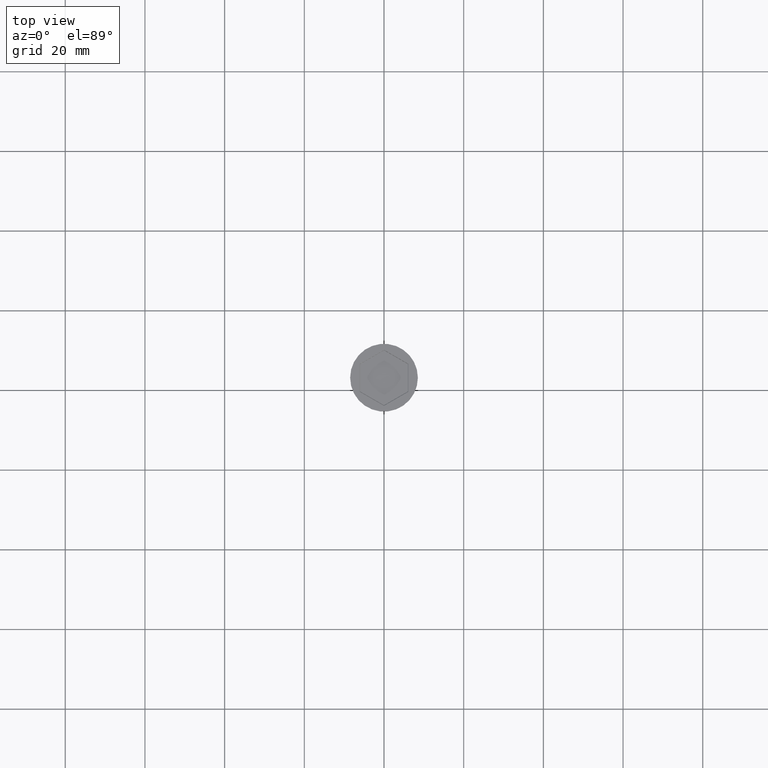
[diagram: clean part render]
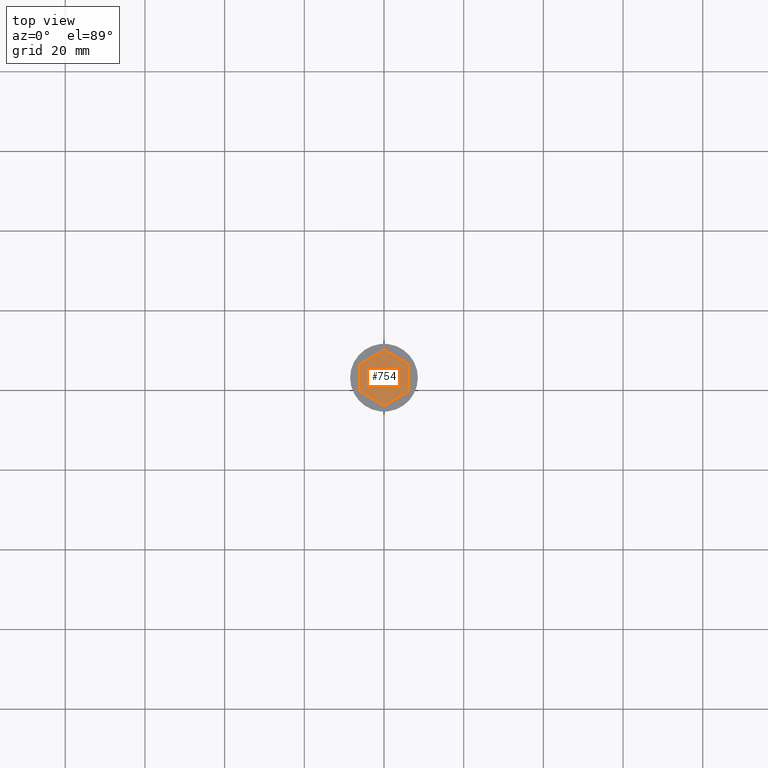
[diagram: same view with one face highlighted and labeled with its STEP entity id]
A machine part, top view. The second image highlights one B-rep face of the part: STEP entity #754.
In plain terms, the highlighted planar face has unit normal (-0, 0, 1).
Its self-contained STEP definition (entity closure, byte-faithful):
#13 = LINE ( 'NONE', #151, #357 ) ;
#29 = DIRECTION ( 'NONE',  ( 0.8660254037844385966, -0.5000000000000001110, 0.000000000000000000 ) ) ;
#45 = CARTESIAN_POINT ( 'NONE',  ( -6.000000000000000000, -3.464101615137754830, -2.000000000000000000 ) ) ;
#53 = DIRECTION ( 'NONE',  ( -0.000000000000000000, 0.000000000000000000, 1.000000000000000000 ) ) ;
#61 = LINE ( 'NONE', #546, #1438 ) ;
#80 = DIRECTION ( 'NONE',  ( -0.8660254037844385966, -0.5000000000000001110, 0.000000000000000000 ) ) ;
#88 = EDGE_LOOP ( 'NONE', ( #779, #1019, #1160, #312, #218, #488 ) ) ;
#131 = VERTEX_POINT ( 'NONE', #45 ) ;
#151 = CARTESIAN_POINT ( 'NONE',  ( -3.000000000000000888, -5.196152422706632024, -2.000000000000000000 ) ) ;
#181 = CARTESIAN_POINT ( 'NONE',  ( -3.000000000000000000, 5.196152422706630247, -2.000000000000000000 ) ) ;
#182 = DIRECTION ( 'NONE',  ( 1.251928832280966188E-16, -1.000000000000000000, 0.000000000000000000 ) ) ;
#209 = VERTEX_POINT ( 'NONE', #854 ) ;
#218 = ORIENTED_EDGE ( 'NONE', *, *, #361, .T. ) ;
#254 = VERTEX_POINT ( 'NONE', #1176 ) ;
#260 = DIRECTION ( 'NONE',  ( -0.8660254037844387076, 0.4999999999999998890, 0.000000000000000000 ) ) ;
#297 = CARTESIAN_POINT ( 'NONE',  ( 0.000000000000000000, 0.000000000000000000, -2.000000000000000000 ) ) ;
#301 = VERTEX_POINT ( 'NONE', #1279 ) ;
#312 = ORIENTED_EDGE ( 'NONE', *, *, #1306, .T. ) ;
#357 = VECTOR ( 'NONE', #29, 1000.000000000000000 ) ;
#361 = EDGE_CURVE ( 'NONE', #301, #209, #551, .T. ) ;
#415 = CARTESIAN_POINT ( 'NONE',  ( 3.000000000000001776, -5.196152422706633800, -2.000000000000000000 ) ) ;
#436 = VECTOR ( 'NONE', #260, 1000.000000000000114 ) ;
#447 = LINE ( 'NONE', #1032, #814 ) ;
#488 = ORIENTED_EDGE ( 'NONE', *, *, #1362, .T. ) ;
#545 = DIRECTION ( 'NONE',  ( 1.000000000000000000, 0.000000000000000000, 0.000000000000000000 ) ) ;
#546 = CARTESIAN_POINT ( 'NONE',  ( -6.000000000000000000, -7.511572993685799101E-16, -2.000000000000000000 ) ) ;
#551 = LINE ( 'NONE', #415, #758 ) ;
#660 = AXIS2_PLACEMENT_3D ( 'NONE', #297, #53, #545 ) ;
#694 = LINE ( 'NONE', #181, #1221 ) ;
#724 = EDGE_CURVE ( 'NONE', #1052, #254, #694, .T. ) ;
#754 = ADVANCED_FACE ( 'NONE', ( #1568 ), #1400, .T. ) ;
#758 = VECTOR ( 'NONE', #1543, 1000.000000000000000 ) ;
#779 = ORIENTED_EDGE ( 'NONE', *, *, #1471, .T. ) ;
#804 = VERTEX_POINT ( 'NONE', #1453 ) ;
#814 = VECTOR ( 'NONE', #1283, 1000.000000000000000 ) ;
#854 = CARTESIAN_POINT ( 'NONE',  ( 6.000000000000000000, -3.464101615137756607, -2.000000000000000000 ) ) ;
#1019 = ORIENTED_EDGE ( 'NONE', *, *, #724, .T. ) ;
#1032 = CARTESIAN_POINT ( 'NONE',  ( 6.000000000000000000, 0.000000000000000000, -2.000000000000000000 ) ) ;
#1052 = VERTEX_POINT ( 'NONE', #1152 ) ;
#1152 = CARTESIAN_POINT ( 'NONE',  ( 0.000000000000000000, 6.928203230275507885, -2.000000000000000000 ) ) ;
#1160 = ORIENTED_EDGE ( 'NONE', *, *, #1341, .T. ) ;
#1176 = CARTESIAN_POINT ( 'NONE',  ( -6.000000000000000000, 3.464101615137752166, -2.000000000000000000 ) ) ;
#1221 = VECTOR ( 'NONE', #80, 1000.000000000000000 ) ;
#1279 = CARTESIAN_POINT ( 'NONE',  ( 1.734723475976807094E-15, -6.928203230275511437, -2.000000000000000000 ) ) ;
#1283 = DIRECTION ( 'NONE',  ( 0.000000000000000000, 1.000000000000000000, -0.000000000000000000 ) ) ;
#1306 = EDGE_CURVE ( 'NONE', #131, #301, #13, .T. ) ;
#1341 = EDGE_CURVE ( 'NONE', #254, #131, #61, .T. ) ;
#1361 = LINE ( 'NONE', #1482, #436 ) ;
#1362 = EDGE_CURVE ( 'NONE', #209, #804, #447, .T. ) ;
#1400 = PLANE ( 'NONE',  #660 ) ;
#1438 = VECTOR ( 'NONE', #182, 1000.000000000000000 ) ;
#1453 = CARTESIAN_POINT ( 'NONE',  ( 6.000000000000000000, 3.464101615137754830, -2.000000000000000000 ) ) ;
#1471 = EDGE_CURVE ( 'NONE', #804, #1052, #1361, .T. ) ;
#1482 = CARTESIAN_POINT ( 'NONE',  ( 2.999999999999998668, 5.196152422706632024, -2.000000000000000000 ) ) ;
#1543 = DIRECTION ( 'NONE',  ( 0.8660254037844385966, 0.5000000000000001110, 0.000000000000000000 ) ) ;
#1568 = FACE_OUTER_BOUND ( 'NONE', #88, .T. ) ;